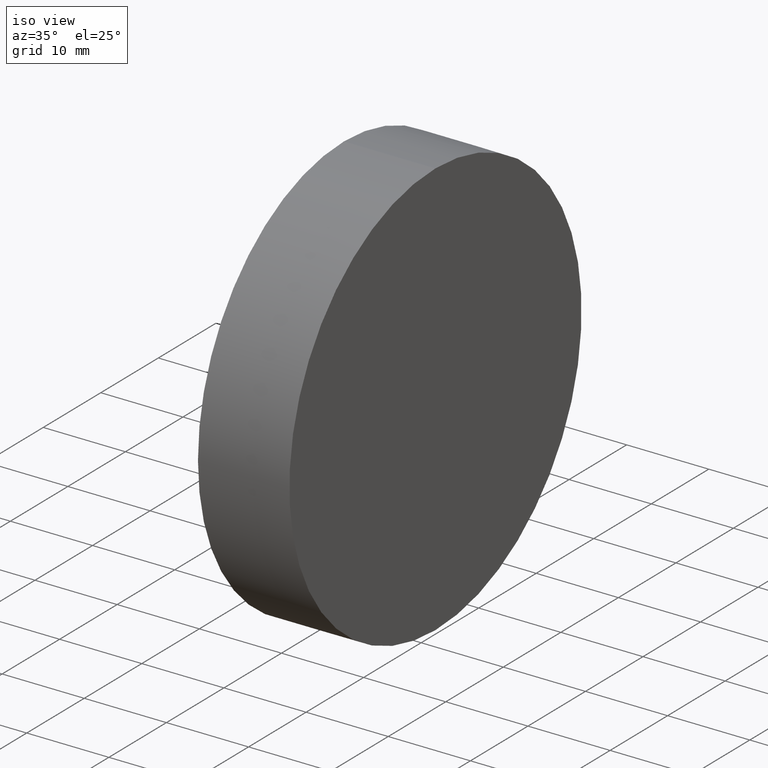
[diagram: clean part render]
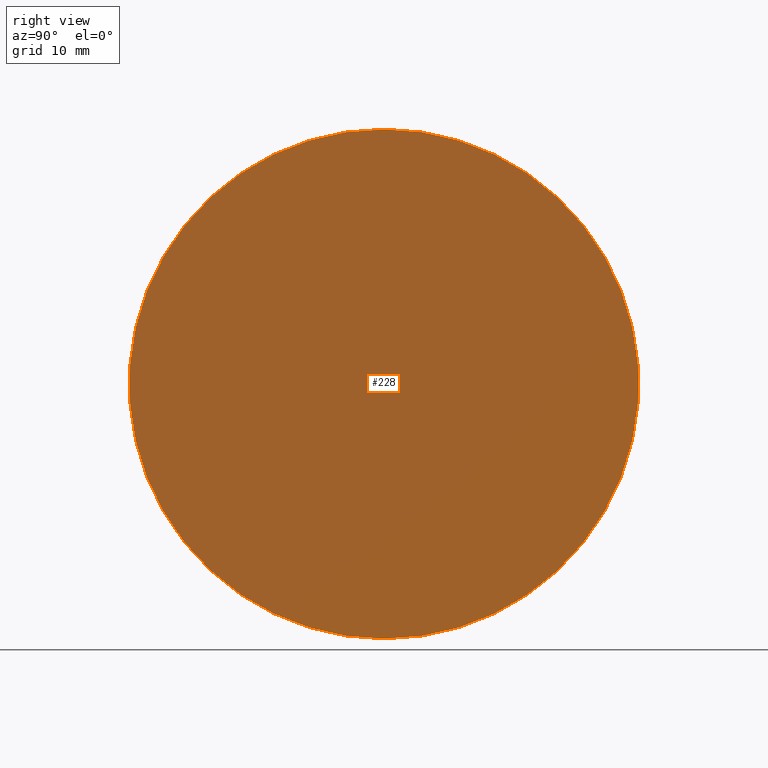
[diagram: tour spotlight — one face highlighted and labeled with its STEP entity id]
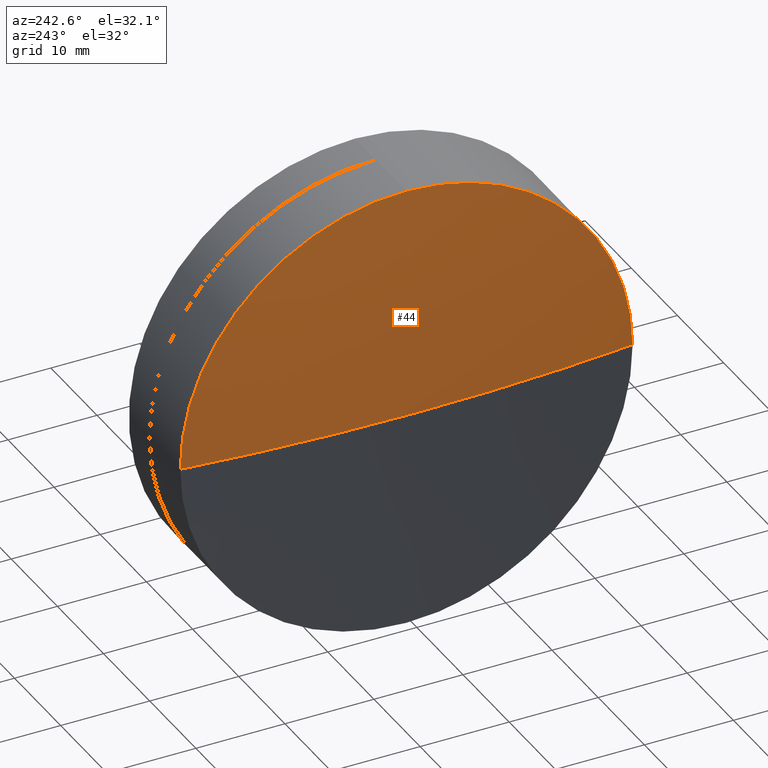
[diagram: tour spotlight — one face highlighted and labeled with its STEP entity id]
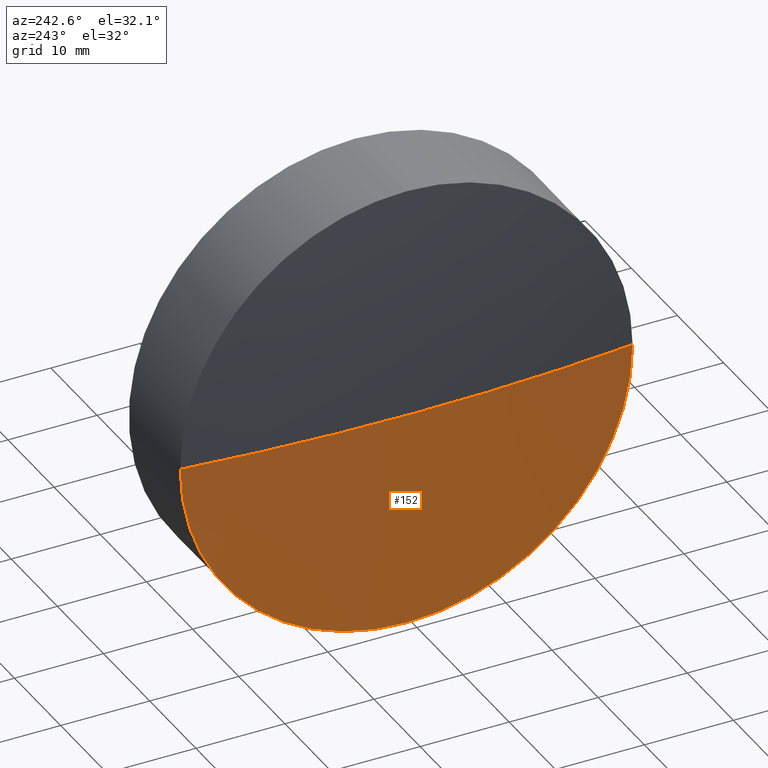
[diagram: tour spotlight — one face highlighted and labeled with its STEP entity id]
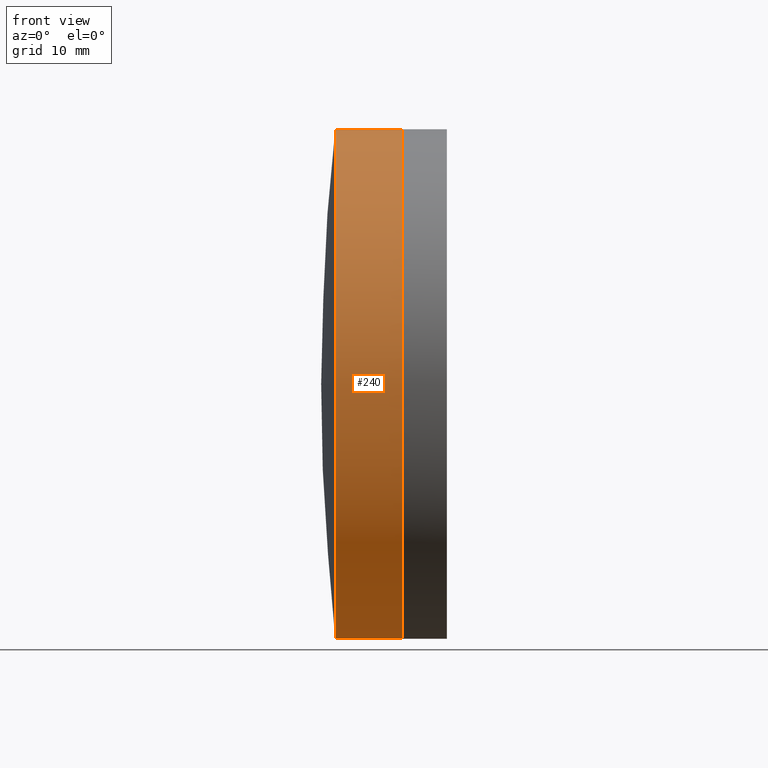
[diagram: tour spotlight — one face highlighted and labeled with its STEP entity id]
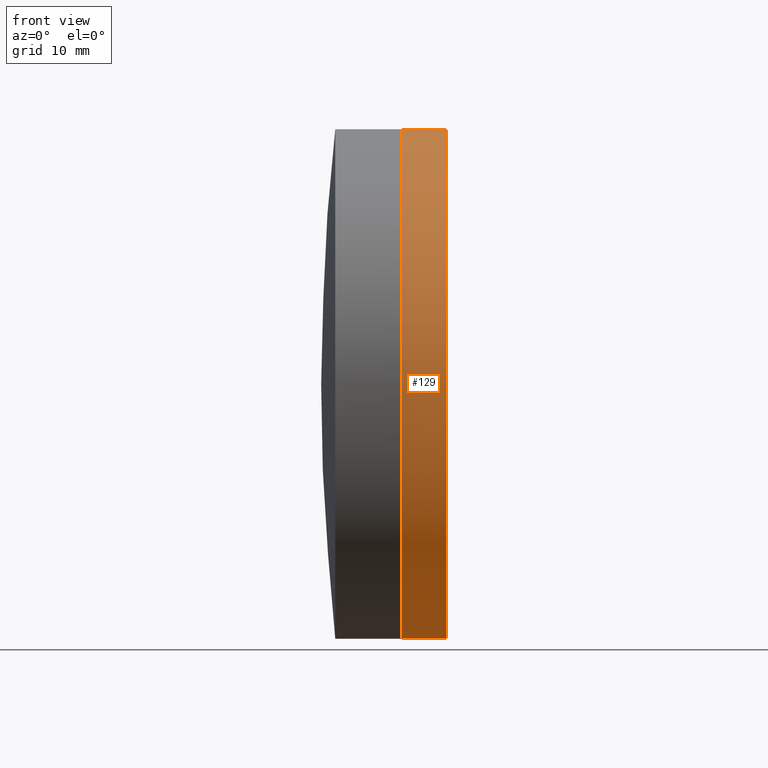
[diagram: tour spotlight — one face highlighted and labeled with its STEP entity id]
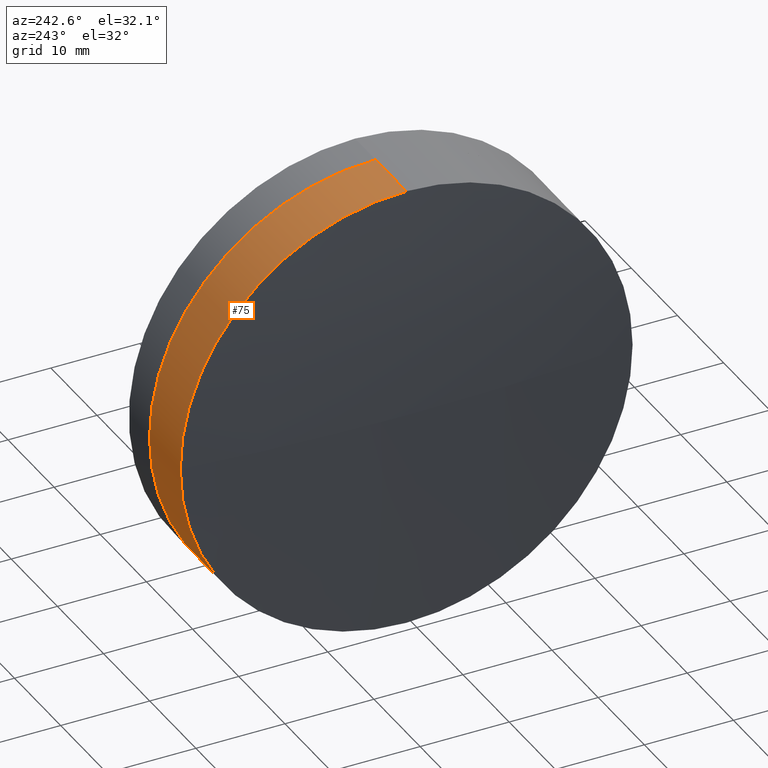
[diagram: tour spotlight — one face highlighted and labeled with its STEP entity id]
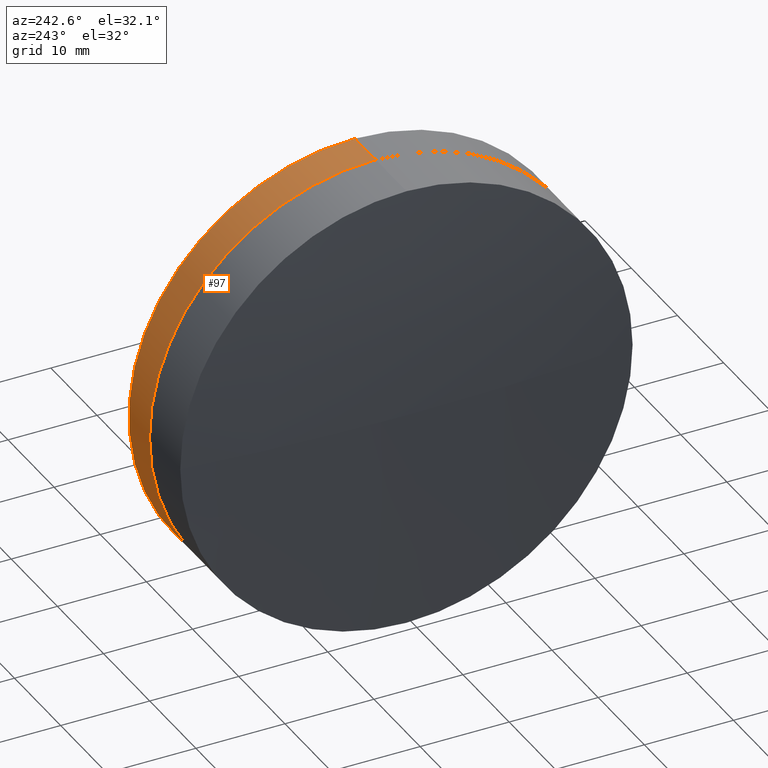
[diagram: tour spotlight — one face highlighted and labeled with its STEP entity id]
A machine part: a face-by-face anatomy tour. The part has 11 B-rep faces; the first image is the clean iso view, then the 7 largest visible faces are spotlighted one at a time (largest first), each with its STEP entity span.

Face 1 — right view, entity #228. In plain terms, the highlighted planar face has unit normal (1, 0, -0).
Definition (entity closure, byte-faithful):
#10 = CARTESIAN_POINT ( 'NONE',  ( -59.18715662996812199, 31.33394953399995586, 0.000000000000000000 ) ) ;
#11 = ORIENTED_EDGE ( 'NONE', *, *, #33, .T. ) ;
#23 = DIRECTION ( 'NONE',  ( 1.000000000000000000, -0.000000000000000000, -0.000000000000000000 ) ) ;
#33 = EDGE_CURVE ( 'NONE', #36, #189, #253, .T. ) ;
#36 = VERTEX_POINT ( 'NONE', #323 ) ;
#48 = PLANE ( 'NONE',  #334 ) ;
#52 = FACE_OUTER_BOUND ( 'NONE', #370, .T. ) ;
#56 = DIRECTION ( 'NONE',  ( 0.000000000000000000, 0.000000000000000000, -1.000000000000000000 ) ) ;
#130 = ORIENTED_EDGE ( 'NONE', *, *, #174, .T. ) ;
#149 = AXIS2_PLACEMENT_3D ( 'NONE', #10, #232, #201 ) ;
#174 = EDGE_CURVE ( 'NONE', #189, #36, #311, .T. ) ;
#176 = CARTESIAN_POINT ( 'NONE',  ( -59.18715662996812199, 56.73394953399995444, 0.000000000000000000 ) ) ;
#179 = DIRECTION ( 'NONE',  ( 1.000000000000000000, 0.000000000000000000, -0.000000000000000000 ) ) ;
#189 = VERTEX_POINT ( 'NONE', #329 ) ;
#201 = DIRECTION ( 'NONE',  ( 0.000000000000000000, 0.000000000000000000, -1.000000000000000000 ) ) ;
#217 = CARTESIAN_POINT ( 'NONE',  ( -59.18715662996812199, 31.33394953399995586, 0.000000000000000000 ) ) ;
#228 = ADVANCED_FACE ( 'NONE', ( #52 ), #48, .T. ) ;
#232 = DIRECTION ( 'NONE',  ( 1.000000000000000000, -0.000000000000000000, -0.000000000000000000 ) ) ;
#253 = CIRCLE ( 'NONE', #149, 25.39999999999999858 ) ;
#272 = DIRECTION ( 'NONE',  ( -0.000000000000000000, 0.000000000000000000, -1.000000000000000000 ) ) ;
#311 = CIRCLE ( 'NONE', #358, 25.39999999999999858 ) ;
#323 = CARTESIAN_POINT ( 'NONE',  ( -59.18715662996812199, 31.33394953399995586, -25.39999999999999858 ) ) ;
#329 = CARTESIAN_POINT ( 'NONE',  ( -59.18715662996812199, 31.33394953399995586, 25.39999999999999858 ) ) ;
#334 = AXIS2_PLACEMENT_3D ( 'NONE', #176, #179, #272 ) ;
#358 = AXIS2_PLACEMENT_3D ( 'NONE', #217, #23, #56 ) ;
#370 = EDGE_LOOP ( 'NONE', ( #11, #130 ) ) ;

Face 2 — auxiliary view, entity #44. In plain terms, the highlighted spherical surface has radius 230.34 mm.
Definition (entity closure, byte-faithful):
#2 = AXIS2_PLACEMENT_3D ( 'NONE', #268, #243, #360 ) ;
#8 = ORIENTED_EDGE ( 'NONE', *, *, #200, .F. ) ;
#17 = CARTESIAN_POINT ( 'NONE',  ( -70.31235131860073295, 31.33394953399995586, 0.000000000000000000 ) ) ;
#31 = AXIS2_PLACEMENT_3D ( 'NONE', #301, #90, #336 ) ;
#38 = EDGE_LOOP ( 'NONE', ( #8, #197, #234, #141 ) ) ;
#44 = ADVANCED_FACE ( 'NONE', ( #357 ), #115, .T. ) ;
#79 = CIRCLE ( 'NONE', #296, 25.39999999999999858 ) ;
#81 = CARTESIAN_POINT ( 'NONE',  ( -70.31235131860074716, 5.933949534000038106, -3.110602869834267004E-15 ) ) ;
#86 = DIRECTION ( 'NONE',  ( 0.000000000000000000, 0.000000000000000000, 1.000000000000000000 ) ) ;
#90 = DIRECTION ( 'NONE',  ( -0.000000000000000000, 0.000000000000000000, 1.000000000000000000 ) ) ;
#109 = VERTEX_POINT ( 'NONE', #81 ) ;
#115 = SPHERICAL_SURFACE ( 'NONE', #2, 230.3400000000000318 ) ;
#116 = CARTESIAN_POINT ( 'NONE',  ( 158.6229137674056631, 31.33394953399995586, 0.000000000000000000 ) ) ;
#125 = DIRECTION ( 'NONE',  ( 0.000000000000000000, 1.000000000000000000, 1.224646799147352961E-16 ) ) ;
#141 = ORIENTED_EDGE ( 'NONE', *, *, #235, .T. ) ;
#146 = EDGE_CURVE ( 'NONE', #109, #355, #79, .T. ) ;
#160 = CIRCLE ( 'NONE', #386, 230.3400000000000603 ) ;
#186 = DIRECTION ( 'NONE',  ( 0.000000000000000000, 1.224646799147353207E-16, -1.000000000000000000 ) ) ;
#197 = ORIENTED_EDGE ( 'NONE', *, *, #146, .T. ) ;
#200 = EDGE_CURVE ( 'NONE', #109, #286, #160, .T. ) ;
#209 = CARTESIAN_POINT ( 'NONE',  ( -71.71708623259436877, 31.33394953399997007, 0.000000000000000000 ) ) ;
#231 = CIRCLE ( 'NONE', #31, 230.3400000000000318 ) ;
#234 = ORIENTED_EDGE ( 'NONE', *, *, #300, .T. ) ;
#235 = EDGE_CURVE ( 'NONE', #348, #286, #231, .T. ) ;
#242 = CARTESIAN_POINT ( 'NONE',  ( -70.31235131860073295, 31.33394953399995586, 0.000000000000000000 ) ) ;
#243 = DIRECTION ( 'NONE',  ( -0.000000000000000000, 0.000000000000000000, -1.000000000000000000 ) ) ;
#248 = AXIS2_PLACEMENT_3D ( 'NONE', #242, #363, #86 ) ;
#268 = CARTESIAN_POINT ( 'NONE',  ( 158.6229137674056631, 31.33394953399995586, 0.000000000000000000 ) ) ;
#286 = VERTEX_POINT ( 'NONE', #209 ) ;
#296 = AXIS2_PLACEMENT_3D ( 'NONE', #17, #326, #331 ) ;
#298 = CIRCLE ( 'NONE', #248, 25.39999999999999858 ) ;
#300 = EDGE_CURVE ( 'NONE', #355, #348, #298, .T. ) ;
#301 = CARTESIAN_POINT ( 'NONE',  ( 158.6229137674056631, 31.33394953399995586, 0.000000000000000000 ) ) ;
#310 = CARTESIAN_POINT ( 'NONE',  ( -70.31235131860074716, 56.73394953399987628, 0.000000000000000000 ) ) ;
#326 = DIRECTION ( 'NONE',  ( -1.000000000000000000, -0.000000000000000000, -0.000000000000000000 ) ) ;
#331 = DIRECTION ( 'NONE',  ( 0.000000000000000000, 0.000000000000000000, 1.000000000000000000 ) ) ;
#336 = DIRECTION ( 'NONE',  ( 1.000000000000000000, 0.000000000000000000, 0.000000000000000000 ) ) ;
#348 = VERTEX_POINT ( 'NONE', #310 ) ;
#355 = VERTEX_POINT ( 'NONE', #365 ) ;
#357 = FACE_OUTER_BOUND ( 'NONE', #38, .T. ) ;
#360 = DIRECTION ( 'NONE',  ( 0.000000000000000000, 1.000000000000000000, 0.000000000000000000 ) ) ;
#363 = DIRECTION ( 'NONE',  ( -1.000000000000000000, -0.000000000000000000, -0.000000000000000000 ) ) ;
#365 = CARTESIAN_POINT ( 'NONE',  ( -70.31235131860073295, 31.33394953399995586, 25.39999999999999858 ) ) ;
#386 = AXIS2_PLACEMENT_3D ( 'NONE', #116, #186, #125 ) ;

Face 3 — auxiliary view, entity #152. In plain terms, the highlighted spherical surface has radius 230.34 mm.
Definition (entity closure, byte-faithful):
#19 = AXIS2_PLACEMENT_3D ( 'NONE', #166, #70, #321 ) ;
#27 = EDGE_CURVE ( 'NONE', #43, #109, #181, .T. ) ;
#31 = AXIS2_PLACEMENT_3D ( 'NONE', #301, #90, #336 ) ;
#43 = VERTEX_POINT ( 'NONE', #275 ) ;
#53 = CARTESIAN_POINT ( 'NONE',  ( -70.31235131860073295, 31.33394953399995586, 0.000000000000000000 ) ) ;
#65 = CIRCLE ( 'NONE', #124, 25.39999999999999858 ) ;
#70 = DIRECTION ( 'NONE',  ( -1.000000000000000000, -0.000000000000000000, -0.000000000000000000 ) ) ;
#81 = CARTESIAN_POINT ( 'NONE',  ( -70.31235131860074716, 5.933949534000038106, -3.110602869834267004E-15 ) ) ;
#90 = DIRECTION ( 'NONE',  ( -0.000000000000000000, 0.000000000000000000, 1.000000000000000000 ) ) ;
#109 = VERTEX_POINT ( 'NONE', #81 ) ;
#116 = CARTESIAN_POINT ( 'NONE',  ( 158.6229137674056631, 31.33394953399995586, 0.000000000000000000 ) ) ;
#124 = AXIS2_PLACEMENT_3D ( 'NONE', #53, #180, #309 ) ;
#125 = DIRECTION ( 'NONE',  ( 0.000000000000000000, 1.000000000000000000, 1.224646799147352961E-16 ) ) ;
#148 = DIRECTION ( 'NONE',  ( 0.000000000000000000, 1.000000000000000000, 0.000000000000000000 ) ) ;
#152 = ADVANCED_FACE ( 'NONE', ( #304 ), #153, .T. ) ;
#153 = SPHERICAL_SURFACE ( 'NONE', #381, 230.3400000000000318 ) ;
#160 = CIRCLE ( 'NONE', #386, 230.3400000000000603 ) ;
#166 = CARTESIAN_POINT ( 'NONE',  ( -70.31235131860073295, 31.33394953399995586, 0.000000000000000000 ) ) ;
#169 = EDGE_CURVE ( 'NONE', #348, #43, #65, .T. ) ;
#180 = DIRECTION ( 'NONE',  ( -1.000000000000000000, -0.000000000000000000, -0.000000000000000000 ) ) ;
#181 = CIRCLE ( 'NONE', #19, 25.39999999999999858 ) ;
#186 = DIRECTION ( 'NONE',  ( 0.000000000000000000, 1.224646799147353207E-16, -1.000000000000000000 ) ) ;
#199 = ORIENTED_EDGE ( 'NONE', *, *, #27, .T. ) ;
#200 = EDGE_CURVE ( 'NONE', #109, #286, #160, .T. ) ;
#209 = CARTESIAN_POINT ( 'NONE',  ( -71.71708623259436877, 31.33394953399997007, 0.000000000000000000 ) ) ;
#221 = ORIENTED_EDGE ( 'NONE', *, *, #169, .T. ) ;
#227 = EDGE_LOOP ( 'NONE', ( #221, #199, #260, #264 ) ) ;
#231 = CIRCLE ( 'NONE', #31, 230.3400000000000318 ) ;
#235 = EDGE_CURVE ( 'NONE', #348, #286, #231, .T. ) ;
#260 = ORIENTED_EDGE ( 'NONE', *, *, #200, .T. ) ;
#264 = ORIENTED_EDGE ( 'NONE', *, *, #235, .F. ) ;
#275 = CARTESIAN_POINT ( 'NONE',  ( -70.31235131860073295, 31.33394953399995586, -25.39999999999999858 ) ) ;
#286 = VERTEX_POINT ( 'NONE', #209 ) ;
#301 = CARTESIAN_POINT ( 'NONE',  ( 158.6229137674056631, 31.33394953399995586, 0.000000000000000000 ) ) ;
#304 = FACE_OUTER_BOUND ( 'NONE', #227, .T. ) ;
#309 = DIRECTION ( 'NONE',  ( 0.000000000000000000, 0.000000000000000000, 1.000000000000000000 ) ) ;
#310 = CARTESIAN_POINT ( 'NONE',  ( -70.31235131860074716, 56.73394953399987628, 0.000000000000000000 ) ) ;
#321 = DIRECTION ( 'NONE',  ( 0.000000000000000000, 0.000000000000000000, 1.000000000000000000 ) ) ;
#336 = DIRECTION ( 'NONE',  ( 1.000000000000000000, 0.000000000000000000, 0.000000000000000000 ) ) ;
#348 = VERTEX_POINT ( 'NONE', #310 ) ;
#381 = AXIS2_PLACEMENT_3D ( 'NONE', #398, #393, #148 ) ;
#386 = AXIS2_PLACEMENT_3D ( 'NONE', #116, #186, #125 ) ;
#393 = DIRECTION ( 'NONE',  ( -0.000000000000000000, 0.000000000000000000, -1.000000000000000000 ) ) ;
#398 = CARTESIAN_POINT ( 'NONE',  ( 158.6229137674056631, 31.33394953399995586, 0.000000000000000000 ) ) ;

Face 4 — front view, entity #240. In plain terms, the highlighted cylindrical surface (partial cylindrical patch) has radius 25.4 mm, axis along (-1, -0, -0).
Definition (entity closure, byte-faithful):
#14 = AXIS2_PLACEMENT_3D ( 'NONE', #55, #88, #338 ) ;
#17 = CARTESIAN_POINT ( 'NONE',  ( -70.31235131860073295, 31.33394953399995586, 0.000000000000000000 ) ) ;
#18 = FACE_OUTER_BOUND ( 'NONE', #61, .T. ) ;
#19 = AXIS2_PLACEMENT_3D ( 'NONE', #166, #70, #321 ) ;
#24 = CARTESIAN_POINT ( 'NONE',  ( -71.71708623259435456, 31.33394953399995586, 0.000000000000000000 ) ) ;
#27 = EDGE_CURVE ( 'NONE', #43, #109, #181, .T. ) ;
#43 = VERTEX_POINT ( 'NONE', #275 ) ;
#54 = LINE ( 'NONE', #123, #369 ) ;
#55 = CARTESIAN_POINT ( 'NONE',  ( -63.65626465923428157, 31.33394953399995586, 0.000000000000000000 ) ) ;
#59 = ORIENTED_EDGE ( 'NONE', *, *, #27, .F. ) ;
#61 = EDGE_LOOP ( 'NONE', ( #388, #374, #350, #378, #380, #59 ) ) ;
#70 = DIRECTION ( 'NONE',  ( -1.000000000000000000, -0.000000000000000000, -0.000000000000000000 ) ) ;
#79 = CIRCLE ( 'NONE', #296, 25.39999999999999858 ) ;
#81 = CARTESIAN_POINT ( 'NONE',  ( -70.31235131860074716, 5.933949534000038106, -3.110602869834267004E-15 ) ) ;
#82 = DIRECTION ( 'NONE',  ( -1.000000000000000000, -0.000000000000000000, -0.000000000000000000 ) ) ;
#88 = DIRECTION ( 'NONE',  ( -1.000000000000000000, -0.000000000000000000, -0.000000000000000000 ) ) ;
#103 = VERTEX_POINT ( 'NONE', #113 ) ;
#109 = VERTEX_POINT ( 'NONE', #81 ) ;
#113 = CARTESIAN_POINT ( 'NONE',  ( -63.65626465923428157, 31.33394953399995586, 25.39999999999999858 ) ) ;
#114 = EDGE_CURVE ( 'NONE', #382, #164, #237, .T. ) ;
#123 = CARTESIAN_POINT ( 'NONE',  ( -71.71708623259435456, 31.33394953399995586, -25.39999999999999858 ) ) ;
#146 = EDGE_CURVE ( 'NONE', #109, #355, #79, .T. ) ;
#154 = CARTESIAN_POINT ( 'NONE',  ( -63.65626465923428157, 31.33394953399995586, -25.39999999999999858 ) ) ;
#164 = VERTEX_POINT ( 'NONE', #241 ) ;
#166 = CARTESIAN_POINT ( 'NONE',  ( -70.31235131860073295, 31.33394953399995586, 0.000000000000000000 ) ) ;
#177 = AXIS2_PLACEMENT_3D ( 'NONE', #24, #218, #371 ) ;
#181 = CIRCLE ( 'NONE', #19, 25.39999999999999858 ) ;
#212 = CARTESIAN_POINT ( 'NONE',  ( -63.65626465923428157, 31.33394953399995586, 0.000000000000000000 ) ) ;
#218 = DIRECTION ( 'NONE',  ( -1.000000000000000000, -0.000000000000000000, -0.000000000000000000 ) ) ;
#226 = AXIS2_PLACEMENT_3D ( 'NONE', #212, #299, #273 ) ;
#237 = CIRCLE ( 'NONE', #226, 25.39999999999999858 ) ;
#240 = ADVANCED_FACE ( 'NONE', ( #18 ), #305, .T. ) ;
#241 = CARTESIAN_POINT ( 'NONE',  ( -63.65626465923429578, 5.933949533999900439, -3.110602869834283965E-15 ) ) ;
#273 = DIRECTION ( 'NONE',  ( 0.000000000000000000, 0.000000000000000000, 1.000000000000000000 ) ) ;
#275 = CARTESIAN_POINT ( 'NONE',  ( -70.31235131860073295, 31.33394953399995586, -25.39999999999999858 ) ) ;
#278 = CARTESIAN_POINT ( 'NONE',  ( -71.71708623259435456, 31.33394953399995586, 25.39999999999999858 ) ) ;
#285 = EDGE_CURVE ( 'NONE', #382, #43, #54, .T. ) ;
#296 = AXIS2_PLACEMENT_3D ( 'NONE', #17, #326, #331 ) ;
#299 = DIRECTION ( 'NONE',  ( -1.000000000000000000, -0.000000000000000000, -0.000000000000000000 ) ) ;
#305 = CYLINDRICAL_SURFACE ( 'NONE', #177, 25.39999999999999858 ) ;
#307 = LINE ( 'NONE', #278, #330 ) ;
#321 = DIRECTION ( 'NONE',  ( 0.000000000000000000, 0.000000000000000000, 1.000000000000000000 ) ) ;
#326 = DIRECTION ( 'NONE',  ( -1.000000000000000000, -0.000000000000000000, -0.000000000000000000 ) ) ;
#330 = VECTOR ( 'NONE', #399, 1000.000000000000000 ) ;
#331 = DIRECTION ( 'NONE',  ( 0.000000000000000000, 0.000000000000000000, 1.000000000000000000 ) ) ;
#338 = DIRECTION ( 'NONE',  ( 0.000000000000000000, 0.000000000000000000, 1.000000000000000000 ) ) ;
#349 = CIRCLE ( 'NONE', #14, 25.39999999999999858 ) ;
#350 = ORIENTED_EDGE ( 'NONE', *, *, #359, .T. ) ;
#355 = VERTEX_POINT ( 'NONE', #365 ) ;
#359 = EDGE_CURVE ( 'NONE', #164, #103, #349, .T. ) ;
#365 = CARTESIAN_POINT ( 'NONE',  ( -70.31235131860073295, 31.33394953399995586, 25.39999999999999858 ) ) ;
#369 = VECTOR ( 'NONE', #82, 1000.000000000000000 ) ;
#371 = DIRECTION ( 'NONE',  ( 0.000000000000000000, 0.000000000000000000, 1.000000000000000000 ) ) ;
#374 = ORIENTED_EDGE ( 'NONE', *, *, #114, .T. ) ;
#378 = ORIENTED_EDGE ( 'NONE', *, *, #379, .T. ) ;
#379 = EDGE_CURVE ( 'NONE', #103, #355, #307, .T. ) ;
#380 = ORIENTED_EDGE ( 'NONE', *, *, #146, .F. ) ;
#382 = VERTEX_POINT ( 'NONE', #154 ) ;
#388 = ORIENTED_EDGE ( 'NONE', *, *, #285, .F. ) ;
#399 = DIRECTION ( 'NONE',  ( -1.000000000000000000, -0.000000000000000000, -0.000000000000000000 ) ) ;

Face 5 — front view, entity #129. In plain terms, the highlighted cylindrical surface (partial cylindrical patch) has radius 25.4 mm, axis along (1, -0, -0).
Definition (entity closure, byte-faithful):
#6 = VERTEX_POINT ( 'NONE', #292 ) ;
#9 = AXIS2_PLACEMENT_3D ( 'NONE', #389, #47, #117 ) ;
#23 = DIRECTION ( 'NONE',  ( 1.000000000000000000, -0.000000000000000000, -0.000000000000000000 ) ) ;
#25 = CIRCLE ( 'NONE', #9, 25.39999999999999503 ) ;
#28 = EDGE_LOOP ( 'NONE', ( #356, #111, #71, #288, #138 ) ) ;
#36 = VERTEX_POINT ( 'NONE', #323 ) ;
#40 = VERTEX_POINT ( 'NONE', #293 ) ;
#46 = AXIS2_PLACEMENT_3D ( 'NONE', #362, #328, #184 ) ;
#47 = DIRECTION ( 'NONE',  ( 1.000000000000000000, -0.000000000000000000, -0.000000000000000000 ) ) ;
#56 = DIRECTION ( 'NONE',  ( 0.000000000000000000, 0.000000000000000000, -1.000000000000000000 ) ) ;
#58 = EDGE_CURVE ( 'NONE', #40, #36, #84, .T. ) ;
#71 = ORIENTED_EDGE ( 'NONE', *, *, #163, .T. ) ;
#84 = LINE ( 'NONE', #172, #376 ) ;
#89 = CYLINDRICAL_SURFACE ( 'NONE', #46, 25.39999999999999858 ) ;
#91 = EDGE_CURVE ( 'NONE', #6, #134, #156, .T. ) ;
#111 = ORIENTED_EDGE ( 'NONE', *, *, #91, .T. ) ;
#117 = DIRECTION ( 'NONE',  ( 0.000000000000000000, 0.000000000000000000, -1.000000000000000000 ) ) ;
#128 = LINE ( 'NONE', #132, #137 ) ;
#129 = ADVANCED_FACE ( 'NONE', ( #145 ), #89, .T. ) ;
#132 = CARTESIAN_POINT ( 'NONE',  ( -59.18715662996812199, 31.33394953399995586, 25.39999999999999858 ) ) ;
#134 = VERTEX_POINT ( 'NONE', #335 ) ;
#137 = VECTOR ( 'NONE', #341, 1000.000000000000000 ) ;
#138 = ORIENTED_EDGE ( 'NONE', *, *, #174, .F. ) ;
#142 = CARTESIAN_POINT ( 'NONE',  ( -63.65626465923428157, 31.33394953399995586, 0.000000000000000000 ) ) ;
#145 = FACE_OUTER_BOUND ( 'NONE', #28, .T. ) ;
#156 = CIRCLE ( 'NONE', #188, 25.39999999999999503 ) ;
#163 = EDGE_CURVE ( 'NONE', #134, #40, #25, .T. ) ;
#172 = CARTESIAN_POINT ( 'NONE',  ( -59.18715662996812199, 31.33394953399995586, -25.39999999999999858 ) ) ;
#174 = EDGE_CURVE ( 'NONE', #189, #36, #311, .T. ) ;
#184 = DIRECTION ( 'NONE',  ( 0.000000000000000000, 0.000000000000000000, -1.000000000000000000 ) ) ;
#188 = AXIS2_PLACEMENT_3D ( 'NONE', #142, #206, #396 ) ;
#189 = VERTEX_POINT ( 'NONE', #329 ) ;
#206 = DIRECTION ( 'NONE',  ( 1.000000000000000000, -0.000000000000000000, -0.000000000000000000 ) ) ;
#217 = CARTESIAN_POINT ( 'NONE',  ( -59.18715662996812199, 31.33394953399995586, 0.000000000000000000 ) ) ;
#236 = DIRECTION ( 'NONE',  ( 1.000000000000000000, -0.000000000000000000, -0.000000000000000000 ) ) ;
#288 = ORIENTED_EDGE ( 'NONE', *, *, #58, .T. ) ;
#292 = CARTESIAN_POINT ( 'NONE',  ( -63.65626465923428157, 31.33394953399995586, 25.39999999999999503 ) ) ;
#293 = CARTESIAN_POINT ( 'NONE',  ( -63.65626465923428157, 31.33394953399995586, -25.39999999999999503 ) ) ;
#311 = CIRCLE ( 'NONE', #358, 25.39999999999999858 ) ;
#323 = CARTESIAN_POINT ( 'NONE',  ( -59.18715662996812199, 31.33394953399995586, -25.39999999999999858 ) ) ;
#328 = DIRECTION ( 'NONE',  ( 1.000000000000000000, -0.000000000000000000, -0.000000000000000000 ) ) ;
#329 = CARTESIAN_POINT ( 'NONE',  ( -59.18715662996812199, 31.33394953399995586, 25.39999999999999858 ) ) ;
#335 = CARTESIAN_POINT ( 'NONE',  ( -63.65626465923426736, 5.933949533999630432, 3.110602869834317097E-15 ) ) ;
#341 = DIRECTION ( 'NONE',  ( 1.000000000000000000, -0.000000000000000000, -0.000000000000000000 ) ) ;
#356 = ORIENTED_EDGE ( 'NONE', *, *, #390, .F. ) ;
#358 = AXIS2_PLACEMENT_3D ( 'NONE', #217, #23, #56 ) ;
#362 = CARTESIAN_POINT ( 'NONE',  ( -59.18715662996812199, 31.33394953399995586, 0.000000000000000000 ) ) ;
#376 = VECTOR ( 'NONE', #236, 1000.000000000000000 ) ;
#389 = CARTESIAN_POINT ( 'NONE',  ( -63.65626465923428157, 31.33394953399995586, 0.000000000000000000 ) ) ;
#390 = EDGE_CURVE ( 'NONE', #6, #189, #128, .T. ) ;
#396 = DIRECTION ( 'NONE',  ( 0.000000000000000000, 0.000000000000000000, -1.000000000000000000 ) ) ;

Face 6 — auxiliary view, entity #75. In plain terms, the highlighted cylindrical surface (partial cylindrical patch) has radius 25.4 mm, axis along (-1, -0, -0).
Definition (entity closure, byte-faithful):
#15 = CARTESIAN_POINT ( 'NONE',  ( -71.71708623259435456, 31.33394953399995586, 0.000000000000000000 ) ) ;
#22 = CARTESIAN_POINT ( 'NONE',  ( -63.65626465923428157, 31.33394953399995586, 0.000000000000000000 ) ) ;
#43 = VERTEX_POINT ( 'NONE', #275 ) ;
#53 = CARTESIAN_POINT ( 'NONE',  ( -70.31235131860073295, 31.33394953399995586, 0.000000000000000000 ) ) ;
#54 = LINE ( 'NONE', #123, #369 ) ;
#57 = DIRECTION ( 'NONE',  ( 0.000000000000000000, 0.000000000000000000, 1.000000000000000000 ) ) ;
#65 = CIRCLE ( 'NONE', #124, 25.39999999999999858 ) ;
#67 = CIRCLE ( 'NONE', #126, 25.39999999999999858 ) ;
#68 = ORIENTED_EDGE ( 'NONE', *, *, #291, .T. ) ;
#75 = ADVANCED_FACE ( 'NONE', ( #120 ), #271, .T. ) ;
#82 = DIRECTION ( 'NONE',  ( -1.000000000000000000, -0.000000000000000000, -0.000000000000000000 ) ) ;
#86 = DIRECTION ( 'NONE',  ( 0.000000000000000000, 0.000000000000000000, 1.000000000000000000 ) ) ;
#98 = EDGE_LOOP ( 'NONE', ( #167, #100, #255, #375, #342, #68 ) ) ;
#100 = ORIENTED_EDGE ( 'NONE', *, *, #285, .T. ) ;
#103 = VERTEX_POINT ( 'NONE', #113 ) ;
#113 = CARTESIAN_POINT ( 'NONE',  ( -63.65626465923428157, 31.33394953399995586, 25.39999999999999858 ) ) ;
#118 = DIRECTION ( 'NONE',  ( -1.000000000000000000, -0.000000000000000000, -0.000000000000000000 ) ) ;
#120 = FACE_OUTER_BOUND ( 'NONE', #98, .T. ) ;
#123 = CARTESIAN_POINT ( 'NONE',  ( -71.71708623259435456, 31.33394953399995586, -25.39999999999999858 ) ) ;
#124 = AXIS2_PLACEMENT_3D ( 'NONE', #53, #180, #309 ) ;
#126 = AXIS2_PLACEMENT_3D ( 'NONE', #258, #118, #57 ) ;
#154 = CARTESIAN_POINT ( 'NONE',  ( -63.65626465923428157, 31.33394953399995586, -25.39999999999999858 ) ) ;
#167 = ORIENTED_EDGE ( 'NONE', *, *, #270, .T. ) ;
#169 = EDGE_CURVE ( 'NONE', #348, #43, #65, .T. ) ;
#180 = DIRECTION ( 'NONE',  ( -1.000000000000000000, -0.000000000000000000, -0.000000000000000000 ) ) ;
#242 = CARTESIAN_POINT ( 'NONE',  ( -70.31235131860073295, 31.33394953399995586, 0.000000000000000000 ) ) ;
#247 = DIRECTION ( 'NONE',  ( 0.000000000000000000, 0.000000000000000000, 1.000000000000000000 ) ) ;
#248 = AXIS2_PLACEMENT_3D ( 'NONE', #242, #363, #86 ) ;
#255 = ORIENTED_EDGE ( 'NONE', *, *, #169, .F. ) ;
#258 = CARTESIAN_POINT ( 'NONE',  ( -63.65626465923428157, 31.33394953399995586, 0.000000000000000000 ) ) ;
#259 = AXIS2_PLACEMENT_3D ( 'NONE', #15, #297, #337 ) ;
#269 = DIRECTION ( 'NONE',  ( -1.000000000000000000, -0.000000000000000000, -0.000000000000000000 ) ) ;
#270 = EDGE_CURVE ( 'NONE', #290, #382, #351, .T. ) ;
#271 = CYLINDRICAL_SURFACE ( 'NONE', #259, 25.39999999999999858 ) ;
#275 = CARTESIAN_POINT ( 'NONE',  ( -70.31235131860073295, 31.33394953399995586, -25.39999999999999858 ) ) ;
#278 = CARTESIAN_POINT ( 'NONE',  ( -71.71708623259435456, 31.33394953399995586, 25.39999999999999858 ) ) ;
#285 = EDGE_CURVE ( 'NONE', #382, #43, #54, .T. ) ;
#290 = VERTEX_POINT ( 'NONE', #332 ) ;
#291 = EDGE_CURVE ( 'NONE', #103, #290, #67, .T. ) ;
#297 = DIRECTION ( 'NONE',  ( -1.000000000000000000, -0.000000000000000000, -0.000000000000000000 ) ) ;
#298 = CIRCLE ( 'NONE', #248, 25.39999999999999858 ) ;
#300 = EDGE_CURVE ( 'NONE', #355, #348, #298, .T. ) ;
#307 = LINE ( 'NONE', #278, #330 ) ;
#309 = DIRECTION ( 'NONE',  ( 0.000000000000000000, 0.000000000000000000, 1.000000000000000000 ) ) ;
#310 = CARTESIAN_POINT ( 'NONE',  ( -70.31235131860074716, 56.73394953399987628, 0.000000000000000000 ) ) ;
#330 = VECTOR ( 'NONE', #399, 1000.000000000000000 ) ;
#332 = CARTESIAN_POINT ( 'NONE',  ( -63.65626465923429578, 56.73394953400001128, 0.000000000000000000 ) ) ;
#337 = DIRECTION ( 'NONE',  ( 0.000000000000000000, 0.000000000000000000, 1.000000000000000000 ) ) ;
#342 = ORIENTED_EDGE ( 'NONE', *, *, #379, .F. ) ;
#348 = VERTEX_POINT ( 'NONE', #310 ) ;
#351 = CIRCLE ( 'NONE', #401, 25.39999999999999858 ) ;
#355 = VERTEX_POINT ( 'NONE', #365 ) ;
#363 = DIRECTION ( 'NONE',  ( -1.000000000000000000, -0.000000000000000000, -0.000000000000000000 ) ) ;
#365 = CARTESIAN_POINT ( 'NONE',  ( -70.31235131860073295, 31.33394953399995586, 25.39999999999999858 ) ) ;
#369 = VECTOR ( 'NONE', #82, 1000.000000000000000 ) ;
#375 = ORIENTED_EDGE ( 'NONE', *, *, #300, .F. ) ;
#379 = EDGE_CURVE ( 'NONE', #103, #355, #307, .T. ) ;
#382 = VERTEX_POINT ( 'NONE', #154 ) ;
#399 = DIRECTION ( 'NONE',  ( -1.000000000000000000, -0.000000000000000000, -0.000000000000000000 ) ) ;
#401 = AXIS2_PLACEMENT_3D ( 'NONE', #22, #269, #247 ) ;

Face 7 — auxiliary view, entity #97. In plain terms, the highlighted cylindrical surface (partial cylindrical patch) has radius 25.4 mm, axis along (1, -0, -0).
Definition (entity closure, byte-faithful):
#6 = VERTEX_POINT ( 'NONE', #292 ) ;
#10 = CARTESIAN_POINT ( 'NONE',  ( -59.18715662996812199, 31.33394953399995586, 0.000000000000000000 ) ) ;
#13 = CARTESIAN_POINT ( 'NONE',  ( -63.65626465923428157, 31.33394953399995586, 0.000000000000000000 ) ) ;
#20 = DIRECTION ( 'NONE',  ( 1.000000000000000000, -0.000000000000000000, -0.000000000000000000 ) ) ;
#26 = ORIENTED_EDGE ( 'NONE', *, *, #80, .T. ) ;
#32 = CARTESIAN_POINT ( 'NONE',  ( -63.65626465923426736, 56.73394953400028129, 0.000000000000000000 ) ) ;
#33 = EDGE_CURVE ( 'NONE', #36, #189, #253, .T. ) ;
#36 = VERTEX_POINT ( 'NONE', #323 ) ;
#40 = VERTEX_POINT ( 'NONE', #293 ) ;
#58 = EDGE_CURVE ( 'NONE', #40, #36, #84, .T. ) ;
#76 = ORIENTED_EDGE ( 'NONE', *, *, #58, .F. ) ;
#80 = EDGE_CURVE ( 'NONE', #387, #6, #346, .T. ) ;
#84 = LINE ( 'NONE', #172, #376 ) ;
#87 = FACE_OUTER_BOUND ( 'NONE', #325, .T. ) ;
#97 = ADVANCED_FACE ( 'NONE', ( #87 ), #302, .T. ) ;
#102 = AXIS2_PLACEMENT_3D ( 'NONE', #245, #20, #238 ) ;
#122 = CARTESIAN_POINT ( 'NONE',  ( -63.65626465923428157, 31.33394953399995586, 0.000000000000000000 ) ) ;
#128 = LINE ( 'NONE', #132, #137 ) ;
#132 = CARTESIAN_POINT ( 'NONE',  ( -59.18715662996812199, 31.33394953399995586, 25.39999999999999858 ) ) ;
#135 = CIRCLE ( 'NONE', #205, 25.39999999999999503 ) ;
#137 = VECTOR ( 'NONE', #341, 1000.000000000000000 ) ;
#149 = AXIS2_PLACEMENT_3D ( 'NONE', #10, #232, #201 ) ;
#151 = DIRECTION ( 'NONE',  ( 1.000000000000000000, -0.000000000000000000, -0.000000000000000000 ) ) ;
#157 = EDGE_CURVE ( 'NONE', #40, #387, #135, .T. ) ;
#172 = CARTESIAN_POINT ( 'NONE',  ( -59.18715662996812199, 31.33394953399995586, -25.39999999999999858 ) ) ;
#178 = DIRECTION ( 'NONE',  ( 1.000000000000000000, -0.000000000000000000, -0.000000000000000000 ) ) ;
#189 = VERTEX_POINT ( 'NONE', #329 ) ;
#201 = DIRECTION ( 'NONE',  ( 0.000000000000000000, 0.000000000000000000, -1.000000000000000000 ) ) ;
#205 = AXIS2_PLACEMENT_3D ( 'NONE', #122, #178, #267 ) ;
#232 = DIRECTION ( 'NONE',  ( 1.000000000000000000, -0.000000000000000000, -0.000000000000000000 ) ) ;
#236 = DIRECTION ( 'NONE',  ( 1.000000000000000000, -0.000000000000000000, -0.000000000000000000 ) ) ;
#238 = DIRECTION ( 'NONE',  ( 0.000000000000000000, 0.000000000000000000, -1.000000000000000000 ) ) ;
#245 = CARTESIAN_POINT ( 'NONE',  ( -59.18715662996812199, 31.33394953399995586, 0.000000000000000000 ) ) ;
#253 = CIRCLE ( 'NONE', #149, 25.39999999999999858 ) ;
#267 = DIRECTION ( 'NONE',  ( 0.000000000000000000, 0.000000000000000000, -1.000000000000000000 ) ) ;
#283 = ORIENTED_EDGE ( 'NONE', *, *, #157, .T. ) ;
#292 = CARTESIAN_POINT ( 'NONE',  ( -63.65626465923428157, 31.33394953399995586, 25.39999999999999503 ) ) ;
#293 = CARTESIAN_POINT ( 'NONE',  ( -63.65626465923428157, 31.33394953399995586, -25.39999999999999503 ) ) ;
#295 = ORIENTED_EDGE ( 'NONE', *, *, #33, .F. ) ;
#302 = CYLINDRICAL_SURFACE ( 'NONE', #102, 25.39999999999999858 ) ;
#316 = ORIENTED_EDGE ( 'NONE', *, *, #390, .T. ) ;
#323 = CARTESIAN_POINT ( 'NONE',  ( -59.18715662996812199, 31.33394953399995586, -25.39999999999999858 ) ) ;
#325 = EDGE_LOOP ( 'NONE', ( #26, #316, #295, #76, #283 ) ) ;
#327 = AXIS2_PLACEMENT_3D ( 'NONE', #13, #151, #366 ) ;
#329 = CARTESIAN_POINT ( 'NONE',  ( -59.18715662996812199, 31.33394953399995586, 25.39999999999999858 ) ) ;
#341 = DIRECTION ( 'NONE',  ( 1.000000000000000000, -0.000000000000000000, -0.000000000000000000 ) ) ;
#346 = CIRCLE ( 'NONE', #327, 25.39999999999999503 ) ;
#366 = DIRECTION ( 'NONE',  ( 0.000000000000000000, 0.000000000000000000, -1.000000000000000000 ) ) ;
#376 = VECTOR ( 'NONE', #236, 1000.000000000000000 ) ;
#387 = VERTEX_POINT ( 'NONE', #32 ) ;
#390 = EDGE_CURVE ( 'NONE', #6, #189, #128, .T. ) ;